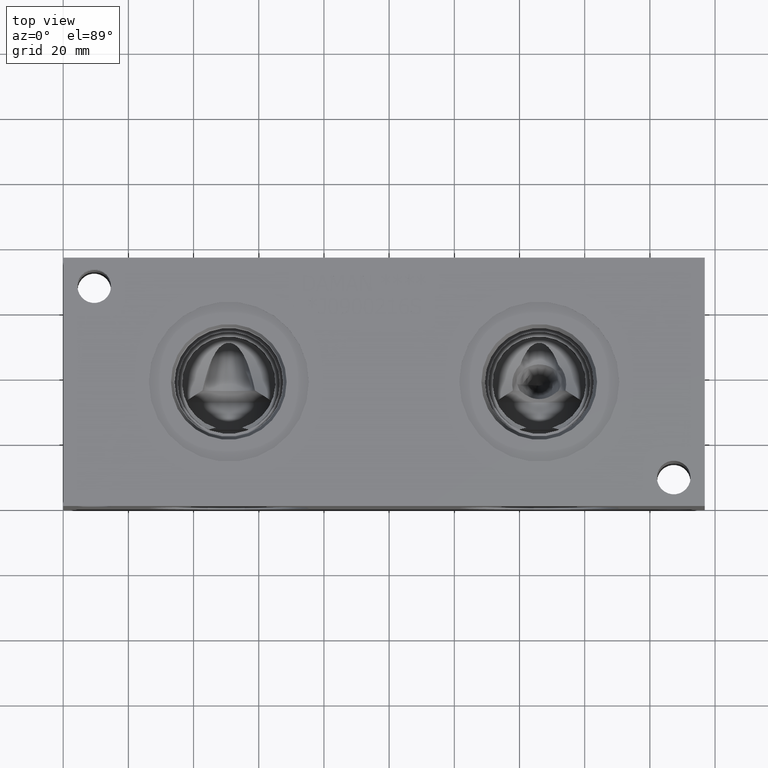
[diagram: clean part render]
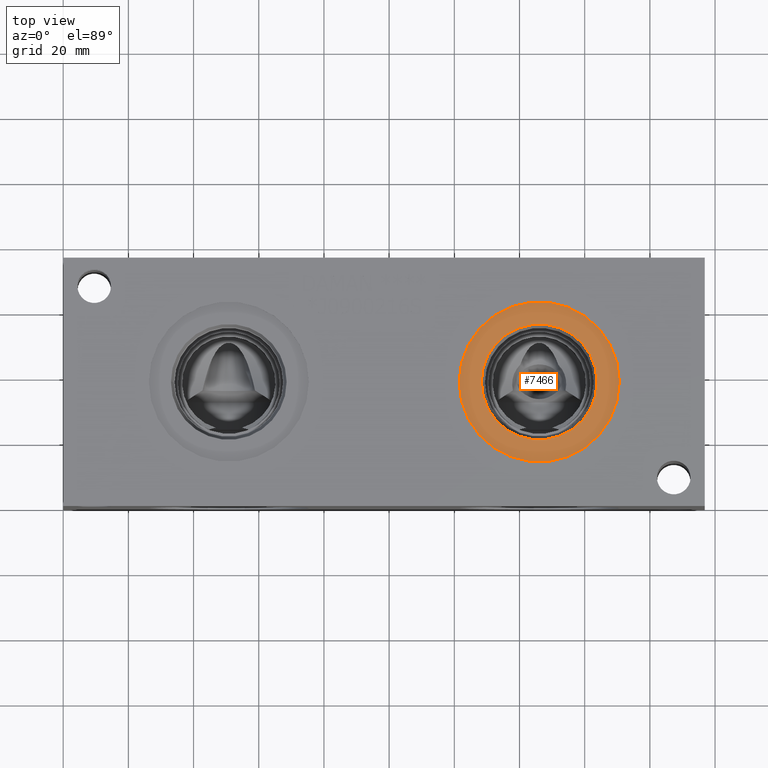
[diagram: same view with one face highlighted and labeled with its STEP entity id]
A machine part, top view. The second image highlights one B-rep face of the part: STEP entity #7466.
In plain terms, the highlighted planar face has unit normal (0, 0, 1).
Its self-contained STEP definition (entity closure, byte-faithful):
#121=CIRCLE('',#7790,24.5618);
#122=CIRCLE('',#7791,24.5618);
#123=CIRCLE('',#7792,17.7546);
#219=FACE_BOUND('',#1343,.T.);
#925=FACE_OUTER_BOUND('',#1342,.T.);
#1342=EDGE_LOOP('',(#6329,#6330));
#1343=EDGE_LOOP('',(#6331));
#3398=VERTEX_POINT('',#12800);
#3399=VERTEX_POINT('',#12801);
#3400=VERTEX_POINT('',#12804);
#4395=EDGE_CURVE('',#3398,#3399,#121,.T.);
#4396=EDGE_CURVE('',#3399,#3398,#122,.T.);
#4397=EDGE_CURVE('',#3400,#3400,#123,.T.);
#6329=ORIENTED_EDGE('',*,*,#4395,.T.);
#6330=ORIENTED_EDGE('',*,*,#4396,.T.);
#6331=ORIENTED_EDGE('',*,*,#4397,.F.);
#6817=PLANE('',#7789);
#7466=ADVANCED_FACE('',(#925,#219),#6817,.T.);
#7789=AXIS2_PLACEMENT_3D('',#12799,#9074,#9075);
#7790=AXIS2_PLACEMENT_3D('',#12802,#9076,#9077);
#7791=AXIS2_PLACEMENT_3D('',#12803,#9078,#9079);
#7792=AXIS2_PLACEMENT_3D('',#12805,#9080,#9081);
#9074=DIRECTION('center_axis',(0.,0.,1.));
#9075=DIRECTION('ref_axis',(1.,0.,0.));
#9076=DIRECTION('center_axis',(0.,0.,1.));
#9077=DIRECTION('ref_axis',(1.,0.,0.));
#9078=DIRECTION('center_axis',(0.,0.,1.));
#9079=DIRECTION('ref_axis',(1.,0.,0.));
#9080=DIRECTION('center_axis',(0.,0.,1.));
#9081=DIRECTION('ref_axis',(1.,0.,0.));
#12799=CARTESIAN_POINT('Origin',(146.05,38.1,75.4126));
#12800=CARTESIAN_POINT('',(170.6118,38.1,75.4126));
#12801=CARTESIAN_POINT('',(121.4882,38.1,75.4126));
#12802=CARTESIAN_POINT('Origin',(146.05,38.1,75.4126));
#12803=CARTESIAN_POINT('Origin',(146.05,38.1,75.4126));
#12804=CARTESIAN_POINT('',(128.2954,38.1,75.4126));
#12805=CARTESIAN_POINT('Origin',(146.05,38.1,75.4126));